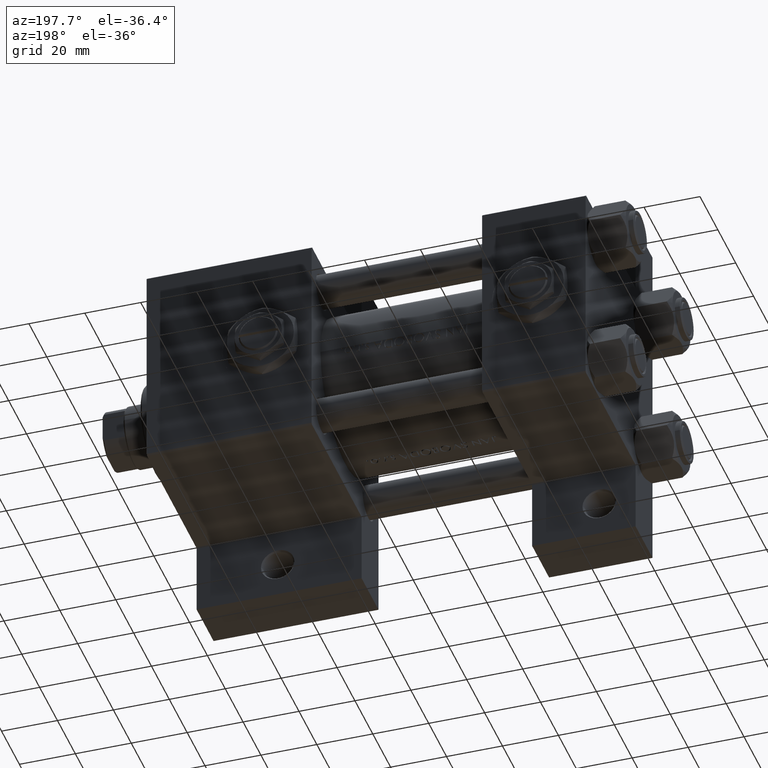
[diagram: clean part render]
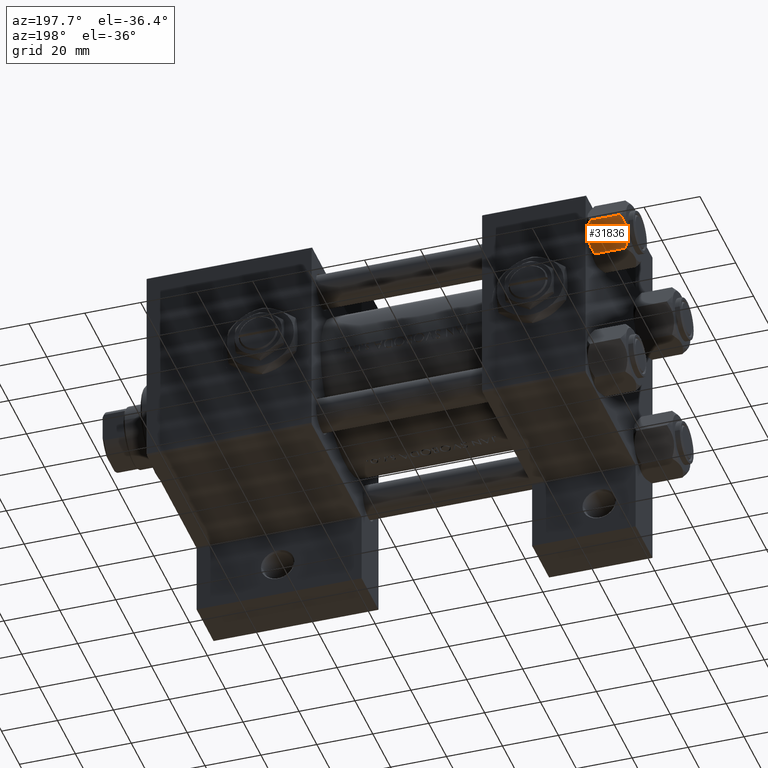
[diagram: same view with one face highlighted and labeled with its STEP entity id]
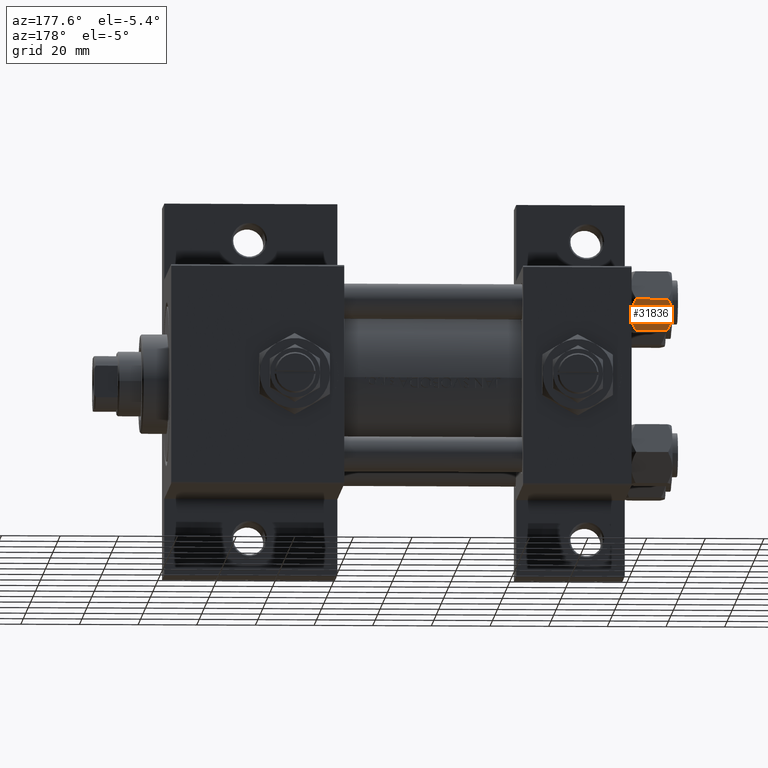
[diagram: same view with one face highlighted and labeled with its STEP entity id]
A machine part, auxiliary view. The second image highlights one B-rep face of the part: STEP entity #31836.
A second angle (auxiliary view) of the same face is appended — the face is thin or edge-on in the first view.
In plain terms, the highlighted planar face has unit normal (-0, -0.866, 0.5).
Its self-contained STEP definition (entity closure, byte-faithful):
#1391 = EDGE_CURVE ( 'NONE', #40619, #11193, #10965, .T. ) ;
#1885 = CARTESIAN_POINT ( 'NONE',  ( 9.974696630283190757, 2.849749030213790224, -0.3002673809867378307 ) ) ;
#2175 = CARTESIAN_POINT ( 'NONE',  ( 8.202333004087902779, 5.919572880271052995, -13.96005881939309212 ) ) ;
#2303 = VERTEX_POINT ( 'NONE', #20068 ) ;
#5894 = CARTESIAN_POINT ( 'NONE',  ( 6.265545725125283738, 9.274186850887380373, -12.89876091710046602 ) ) ;
#6105 = CARTESIAN_POINT ( 'NONE',  ( 8.715000000000003411, 5.031607595987588333, 0.000000000000000000 ) ) ;
#6393 = CARTESIAN_POINT ( 'NONE',  ( 9.716999946243698005, 3.296092779912227044, -13.84547602999601779 ) ) ;
#6578 = B_SPLINE_CURVE_WITH_KNOTS ( 'NONE', 3,
 ( #21268, #5894, #32926, #36895, #32432, #2175, #48028, #21749 ),
 .UNSPECIFIED., .F., .F.,
 ( 4, 2, 2, 4 ),
 ( 2.544312114902182352E-07, 0.003011550106433540791, 0.004517197944044566184, 0.006022845781655591577 ),
 .UNSPECIFIED. ) ;
#8050 = AXIS2_PLACEMENT_3D ( 'NONE', #36449, #13146, #32221 ) ;
#9847 = CARTESIAN_POINT ( 'NONE',  ( 9.729165168613654657, 3.275021996682081493, -0.1903979688073423326 ) ) ;
#9961 = B_SPLINE_CURVE_WITH_KNOTS ( 'NONE', 3,
 ( #39594, #10088, #43785, #1885, #9847, #21230, #17758, #6105 ),
 .UNSPECIFIED., .F., .F.,
 ( 4, 2, 2, 4 ),
 ( 2.544312114904956385E-07, 0.003011550106433539924, 0.004517197944044563582, 0.006022845781655587240 ),
 .UNSPECIFIED. ) ;
#10088 = CARTESIAN_POINT ( 'NONE',  ( 11.16445427487472131, 0.7890283410877951820, -1.101239082899533317 ) ) ;
#10205 = VERTEX_POINT ( 'NONE', #24825 ) ;
#10965 = B_SPLINE_CURVE_WITH_KNOTS ( 'NONE', 3,
 ( #21303, #16842, #44354, #25016, #28501, #31965 ),
 .UNSPECIFIED., .F., .F.,
 ( 4, 2, 4 ),
 ( 0.006022845781655587240, 0.009013049135303635023, 0.01200325248895168367 ),
 .UNSPECIFIED. ) ;
#11193 = VERTEX_POINT ( 'NONE', #36016 ) ;
#11651 = VERTEX_POINT ( 'NONE', #15047 ) ;
#12030 = CARTESIAN_POINT ( 'NONE',  ( 11.62000000000000099, -1.813166800014576593E-15, -14.00000000000000000 ) ) ;
#12422 = EDGE_CURVE ( 'NONE', #10205, #11651, #36164, .T. ) ;
#12598 = ORIENTED_EDGE ( 'NONE', *, *, #49033, .T. ) ;
#13146 = DIRECTION ( 'NONE',  ( -0.8660254037844387076, -0.4999999999999998335, 0.000000000000000000 ) ) ;
#14002 = CARTESIAN_POINT ( 'NONE',  ( 8.715000000000003411, 5.031607595987588333, 0.000000000000000000 ) ) ;
#15047 = CARTESIAN_POINT ( 'NONE',  ( 11.62000000000000099, -1.795242522838921761E-15, -12.44321519197518455 ) ) ;
#16842 = CARTESIAN_POINT ( 'NONE',  ( 8.209704053696574633, 5.906805847843726198, 1.265467223197924312E-15 ) ) ;
#16846 = FACE_OUTER_BOUND ( 'NONE', #46257, .T. ) ;
#17758 = CARTESIAN_POINT ( 'NONE',  ( 8.969430103550381617, 4.590921729663312689, 1.314595134138673732E-15 ) ) ;
#17801 = CARTESIAN_POINT ( 'NONE',  ( 9.220295946303432189, 4.156409344131451356, -14.00000000000000178 ) ) ;
#19288 = DIRECTION ( 'NONE',  ( -0.000000000000000000, -0.000000000000000000, 1.000000000000000000 ) ) ;
#20068 = CARTESIAN_POINT ( 'NONE',  ( 5.810000000000000497, 10.06321519197518022, -12.44321519197518278 ) ) ;
#21230 = CARTESIAN_POINT ( 'NONE',  ( 9.227666995912102266, 4.143642311704122783, -0.03994118060690848154 ) ) ;
#21268 = CARTESIAN_POINT ( 'NONE',  ( 5.810000000000000497, 10.06321519197518022, -12.44321519197518278 ) ) ;
#21303 = CARTESIAN_POINT ( 'NONE',  ( 8.715000000000003411, 5.031607595987588333, 0.000000000000000000 ) ) ;
#21329 = ORIENTED_EDGE ( 'NONE', *, *, #12422, .F. ) ;
#21510 = CARTESIAN_POINT ( 'NONE',  ( 11.62000000000000099, -1.795242522838921761E-15, -12.44321519197518455 ) ) ;
#21749 = CARTESIAN_POINT ( 'NONE',  ( 8.715000000000003411, 5.031607595987588333, -14.00000000000000000 ) ) ;
#22298 = EDGE_CURVE ( 'NONE', #2303, #10205, #6578, .T. ) ;
#22942 = LINE ( 'NONE', #12030, #39556 ) ;
#24232 = LINE ( 'NONE', #46544, #39403 ) ;
#24825 = CARTESIAN_POINT ( 'NONE',  ( 8.715000000000003411, 5.031607595987588333, -14.00000000000000000 ) ) ;
#25016 = CARTESIAN_POINT ( 'NONE',  ( 6.733375043383499126, 8.463882702393842550, -0.7114554706434507159 ) ) ;
#27148 = DIRECTION ( 'NONE',  ( -0.000000000000000000, -0.000000000000000000, 1.000000000000000000 ) ) ;
#28501 = CARTESIAN_POINT ( 'NONE',  ( 6.265018354709775750, 9.275100283241453525, -1.101766453314955152 ) ) ;
#28851 = VERTEX_POINT ( 'NONE', #43058 ) ;
#30113 = EDGE_CURVE ( 'NONE', #11651, #28851, #22942, .T. ) ;
#31836 = ADVANCED_FACE ( 'NONE', ( #16846 ), #31969, .F. ) ;
#31965 = CARTESIAN_POINT ( 'NONE',  ( 5.810000000000000497, 10.06321519197518022, -1.556784808024817890 ) ) ;
#31969 = PLANE ( 'NONE',  #8050 ) ;
#32221 = DIRECTION ( 'NONE',  ( 0.4999999999999998335, -0.8660254037844387076, 0.000000000000000000 ) ) ;
#32432 = CARTESIAN_POINT ( 'NONE',  ( 7.700834831386346835, 6.788193195293095172, -13.80960203119265728 ) ) ;
#32926 = CARTESIAN_POINT ( 'NONE',  ( 6.731401448974989599, 8.467301068182914392, -13.28585617404753272 ) ) ;
#36016 = CARTESIAN_POINT ( 'NONE',  ( 5.810000000000000497, 10.06321519197518022, -1.556784808024817890 ) ) ;
#36164 = B_SPLINE_CURVE_WITH_KNOTS ( 'NONE', 3,
 ( #44323, #17801, #6393, #45049, #44800, #21510 ),
 .UNSPECIFIED., .F., .F.,
 ( 4, 2, 4 ),
 ( 0.006022845781655591577, 0.009013049135303638493, 0.01200325248895168714 ),
 .UNSPECIFIED. ) ;
#36449 = CARTESIAN_POINT ( 'NONE',  ( 5.810000000000000497, 10.06321519197518022, -14.00000000000000000 ) ) ;
#36895 = CARTESIAN_POINT ( 'NONE',  ( 7.455303369716809847, 7.213466161761385997, -13.69973261901326289 ) ) ;
#39360 = ORIENTED_EDGE ( 'NONE', *, *, #30113, .F. ) ;
#39403 = VECTOR ( 'NONE', #19288, 1000.000000000000000 ) ;
#39556 = VECTOR ( 'NONE', #27148, 1000.000000000000000 ) ;
#39594 = CARTESIAN_POINT ( 'NONE',  ( 11.62000000000000099, -1.607967606633101042E-15, -1.556784808024815669 ) ) ;
#39864 = ORIENTED_EDGE ( 'NONE', *, *, #40328, .F. ) ;
#40328 = EDGE_CURVE ( 'NONE', #28851, #40619, #9961, .T. ) ;
#40619 = VERTEX_POINT ( 'NONE', #14002 ) ;
#43058 = CARTESIAN_POINT ( 'NONE',  ( 11.62000000000000099, -1.607967606633101042E-15, -1.556784808024815669 ) ) ;
#43084 = ORIENTED_EDGE ( 'NONE', *, *, #1391, .F. ) ;
#43785 = CARTESIAN_POINT ( 'NONE',  ( 10.69859855102501278, 1.595914123792261829, -0.7141438259524660603 ) ) ;
#44323 = CARTESIAN_POINT ( 'NONE',  ( 8.715000000000003411, 5.031607595987588333, -14.00000000000000000 ) ) ;
#44354 = CARTESIAN_POINT ( 'NONE',  ( 7.713000053756308816, 6.767122412062953174, -0.1545239700039844066 ) ) ;
#44800 = CARTESIAN_POINT ( 'NONE',  ( 11.16498164529022574, 0.7881149087337280257, -12.89823354668504862 ) ) ;
#45049 = CARTESIAN_POINT ( 'NONE',  ( 10.69662495661650503, 1.599332489581332339, -13.28854452935654962 ) ) ;
#46257 = EDGE_LOOP ( 'NONE', ( #48253, #12598, #43084, #39864, #39360, #21329 ) ) ;
#46544 = CARTESIAN_POINT ( 'NONE',  ( 5.810000000000000497, 10.06321519197518022, -14.00000000000000000 ) ) ;
#48028 = CARTESIAN_POINT ( 'NONE',  ( 8.460569896449619876, 5.472293462311864864, -14.00000000000000355 ) ) ;
#48253 = ORIENTED_EDGE ( 'NONE', *, *, #22298, .F. ) ;
#49033 = EDGE_CURVE ( 'NONE', #2303, #11193, #24232, .T. ) ;